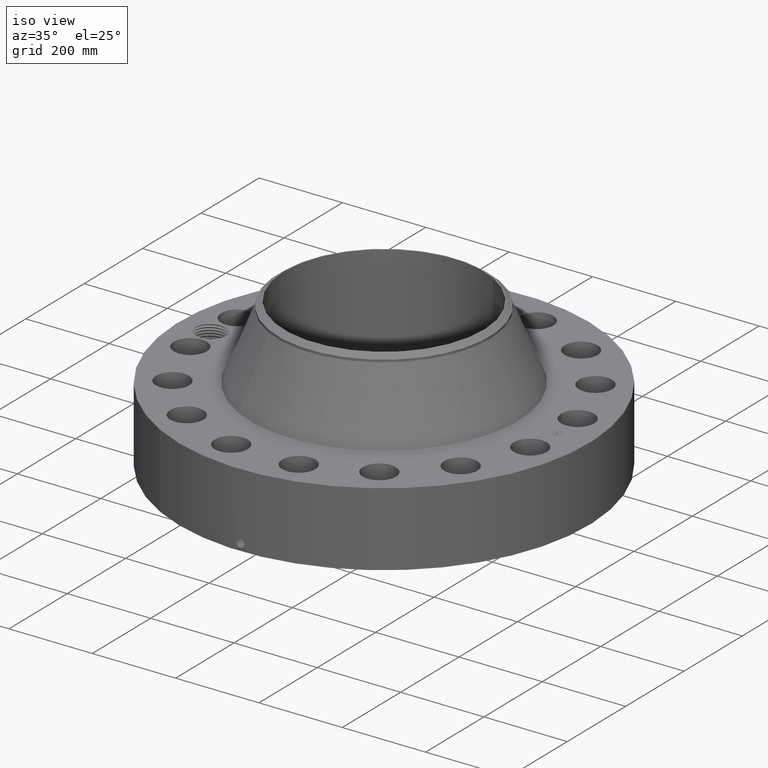
[diagram: clean part render]
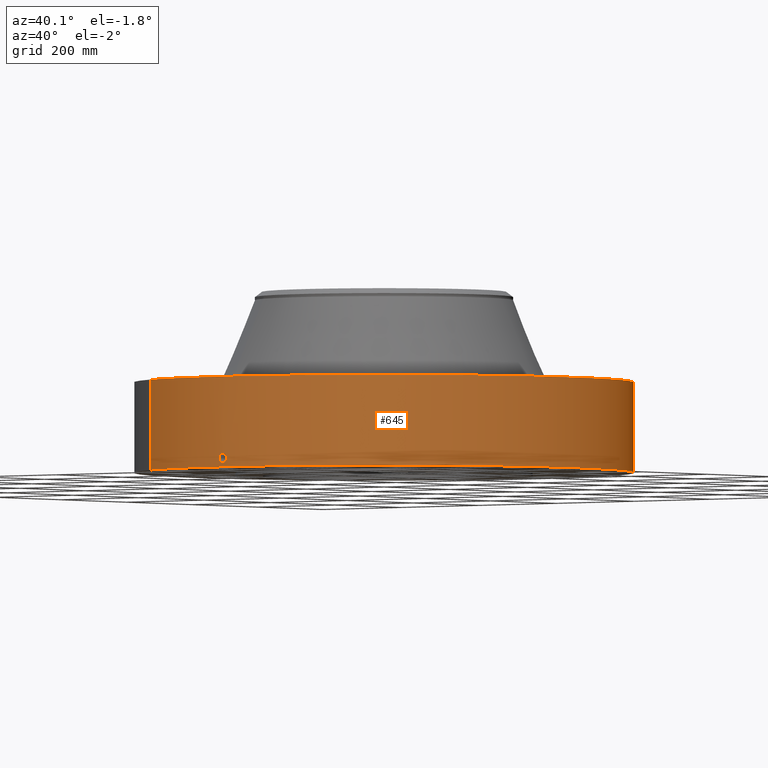
[diagram: tour spotlight — one face highlighted and labeled with its STEP entity id]
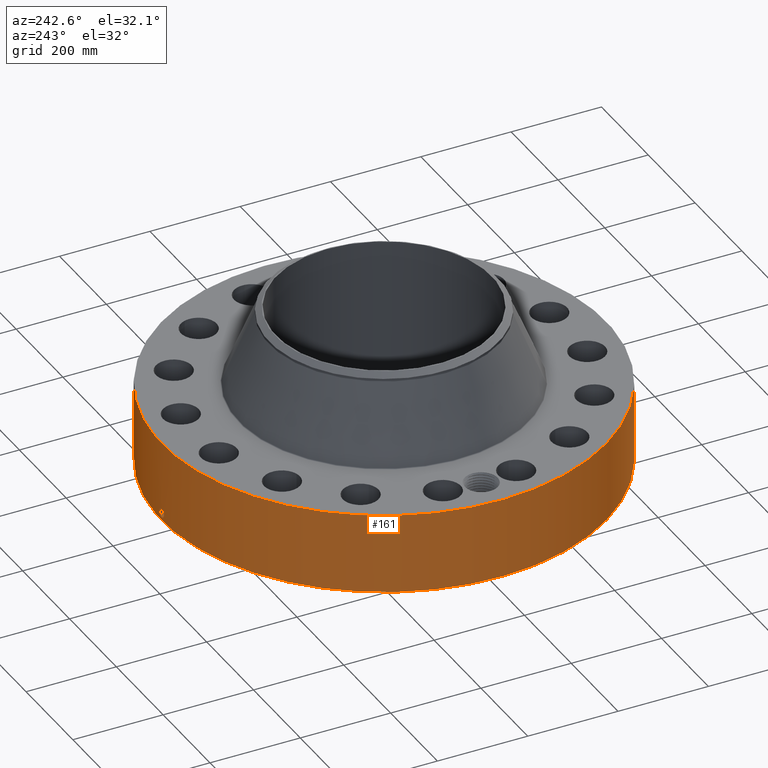
[diagram: tour spotlight — one face highlighted and labeled with its STEP entity id]
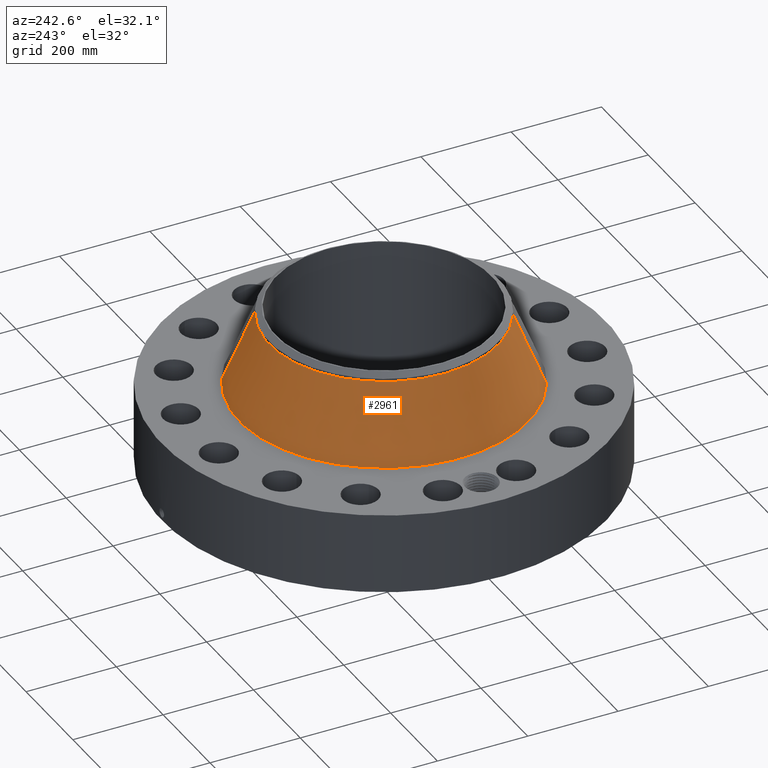
[diagram: tour spotlight — one face highlighted and labeled with its STEP entity id]
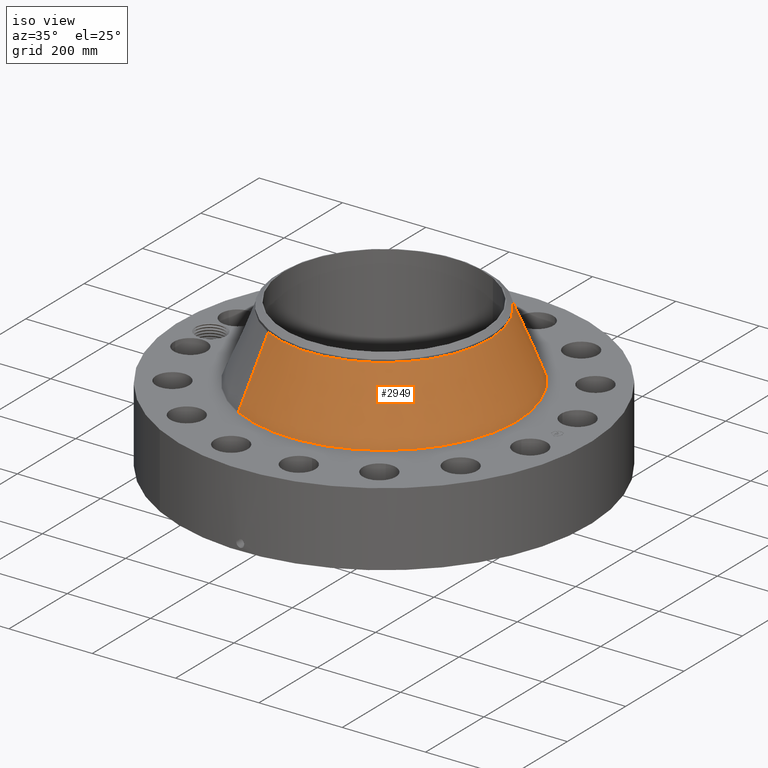
[diagram: tour spotlight — one face highlighted and labeled with its STEP entity id]
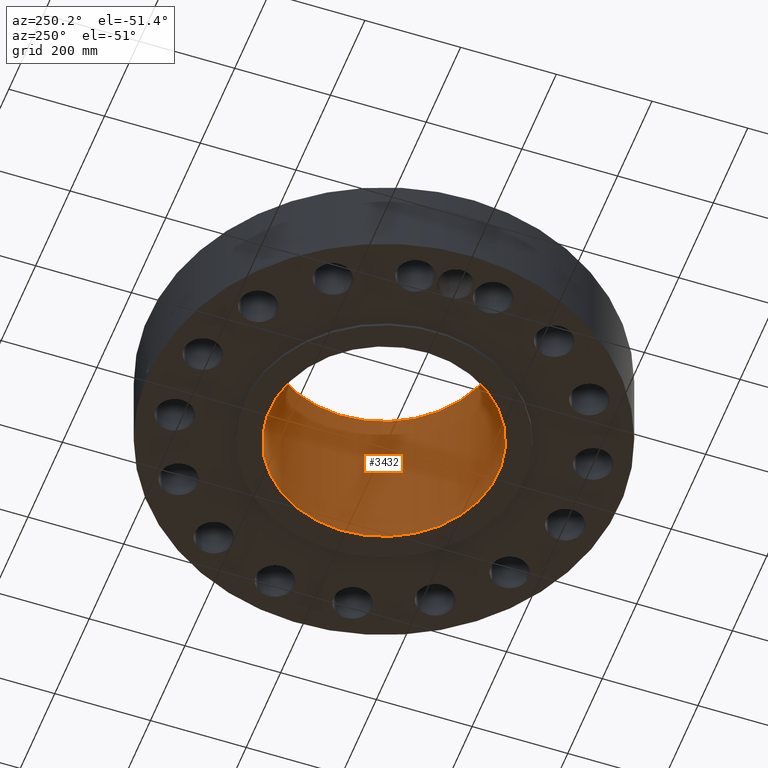
[diagram: tour spotlight — one face highlighted and labeled with its STEP entity id]
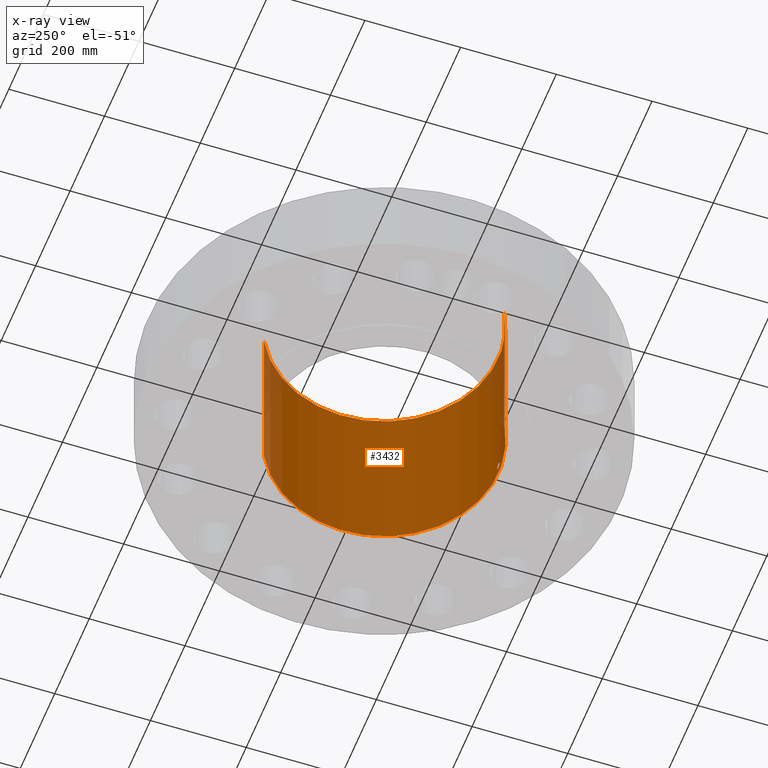
[diagram: x-ray of the same camera — body ghosted, this tour face saturated]
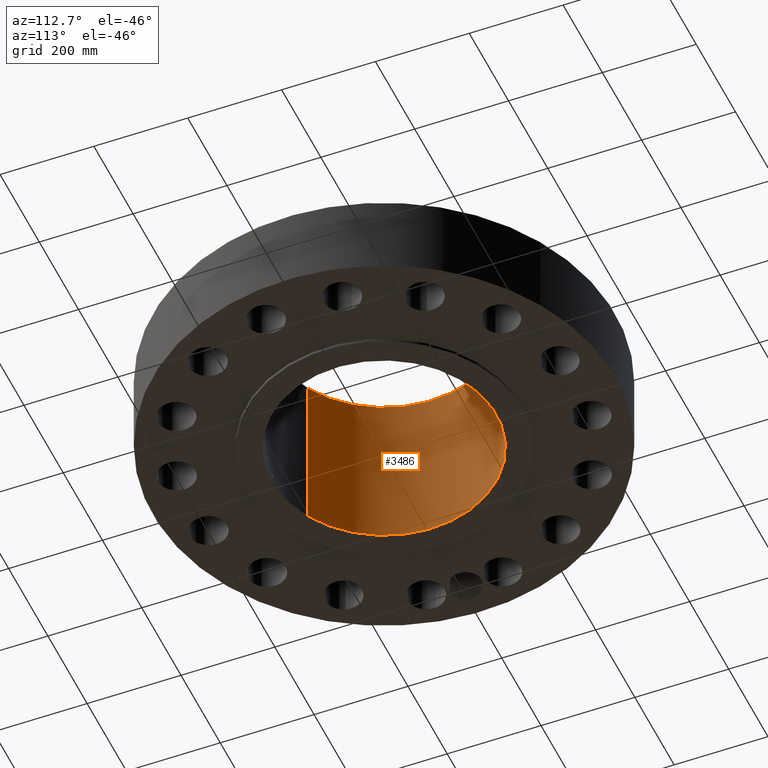
[diagram: tour spotlight — one face highlighted and labeled with its STEP entity id]
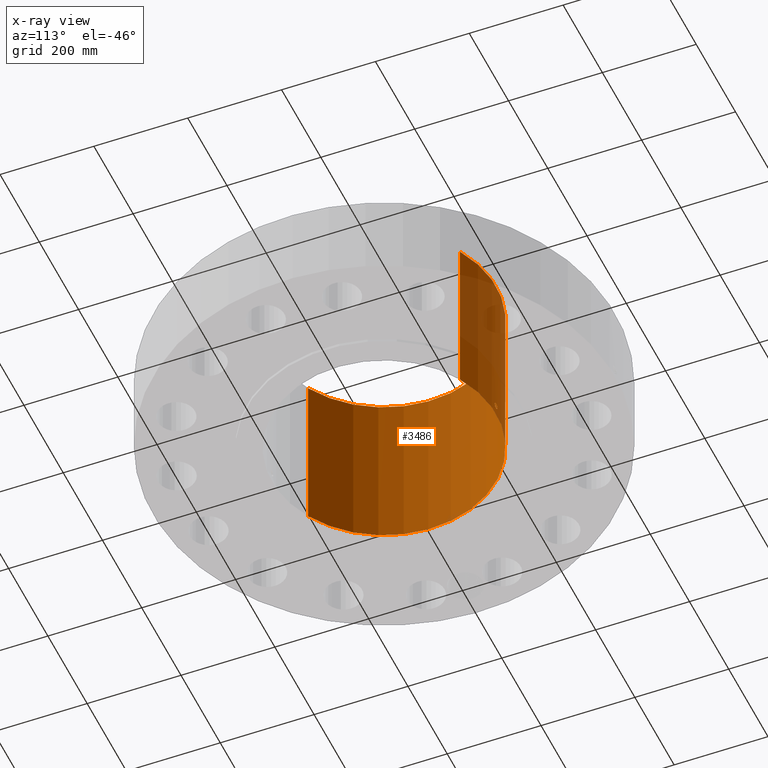
[diagram: x-ray of the same camera — body ghosted, this tour face saturated]
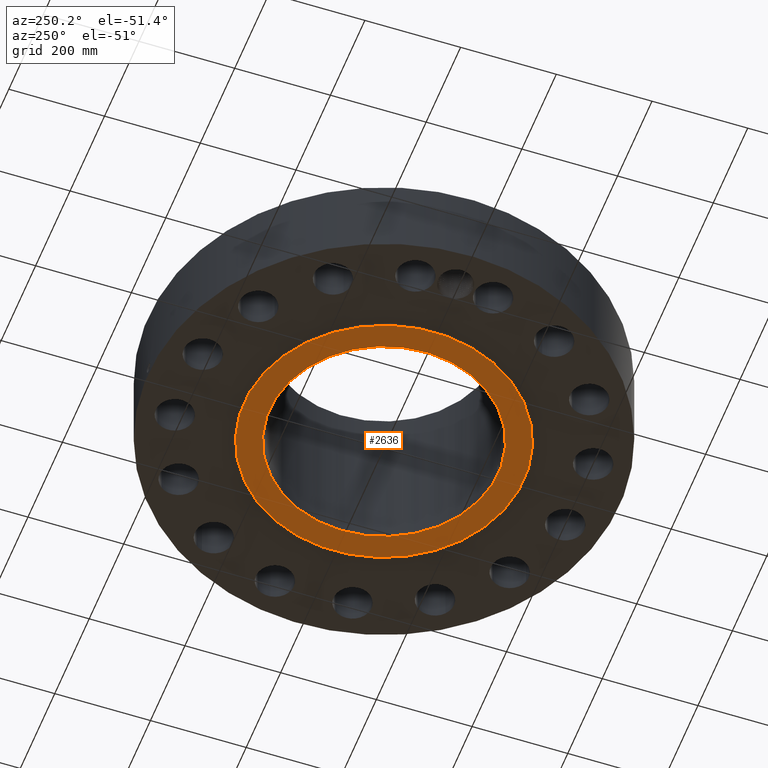
[diagram: tour spotlight — one face highlighted and labeled with its STEP entity id]
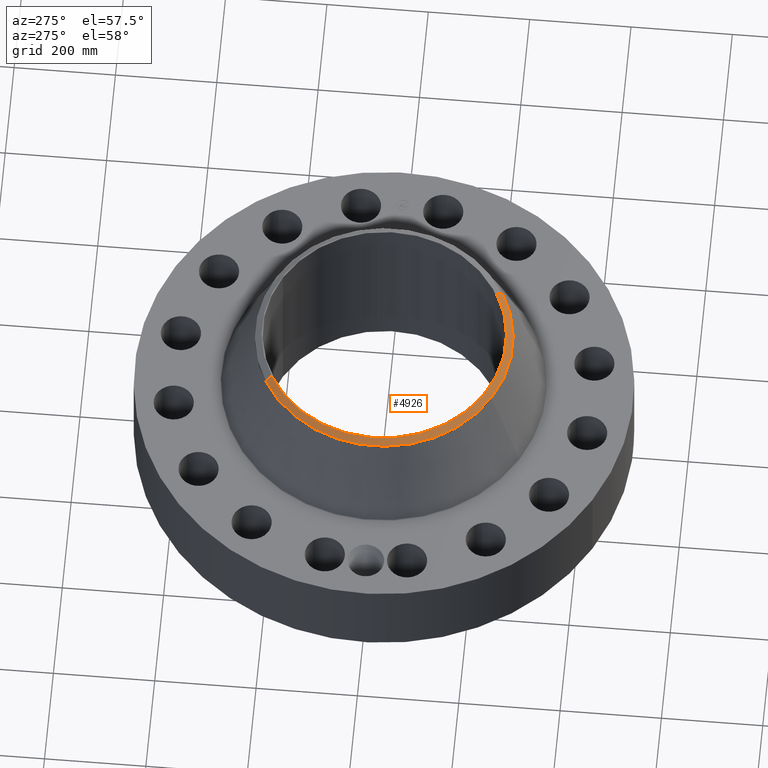
[diagram: tour spotlight — one face highlighted and labeled with its STEP entity id]
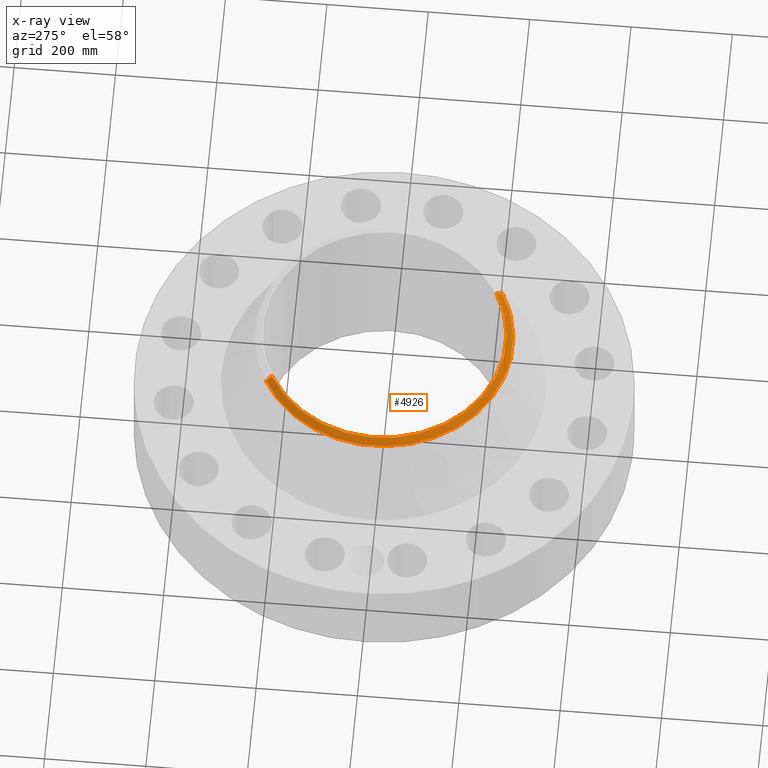
[diagram: x-ray of the same camera — body ghosted, this tour face saturated]
A machine part: a face-by-face anatomy tour. The part has 863 B-rep faces; the first image is the clean iso view, then the 8 largest visible faces are spotlighted one at a time (largest first), each with its STEP entity span.

Face 1 — auxiliary view, entity #645. In plain terms, the highlighted cylindrical surface (partial cylindrical patch) has radius 492.125 mm, axis along (0, 0, -1).
Definition (entity closure, byte-faithful):
#38=AXIS2_PLACEMENT_3D('Cylinder Axis2P3D',#35,#36,#37) ;
#169=AXIS2_PLACEMENT_3D('Circle Axis2P3D',#167,#168,$) ;
#549=AXIS2_PLACEMENT_3D('Circle Axis2P3D',#547,#548,$) ;
#35=CARTESIAN_POINT('Axis2P3D Location',(0.,0.,7.12500000003)) ;
#44=CARTESIAN_POINT('Vertex',(-9.28886981049,-17.0031621367,0.250000000001)) ;
#46=CARTESIAN_POINT('Vertex',(9.28886981049,17.0031621367,0.250000000001)) ;
#49=CARTESIAN_POINT('Line Origine',(-9.28886981049,-17.0031621367,3.75000000002)) ;
#53=CARTESIAN_POINT('Vertex',(-9.28886981049,-17.0031621367,7.25000000003)) ;
#60=CARTESIAN_POINT('Vertex',(9.28886981049,17.0031621367,7.25000000003)) ;
#63=CARTESIAN_POINT('Line Origine',(9.28886981049,17.0031621367,3.75000000002)) ;
#167=CARTESIAN_POINT('Axis2P3D Location',(0.,0.,0.250000000001)) ;
#547=CARTESIAN_POINT('Axis2P3D Location',(0.,0.,7.25000000003)) ;
#559=CARTESIAN_POINT('Control Point',(0.000715863900645,-19.3749999869,1.29411846178)) ;
#560=CARTESIAN_POINT('Control Point',(0.0187274883206,-19.3749993214,1.29408209957)) ;
#561=CARTESIAN_POINT('Control Point',(0.0367360096922,-19.3749733466,1.29266801176)) ;
#562=CARTESIAN_POINT('Control Point',(0.0545323828082,-19.3749232572,1.28989276382)) ;
#563=CARTESIAN_POINT('Vertex',(0.00071558600633,-19.3749999869,1.29411851089)) ;
#565=CARTESIAN_POINT('Vertex',(0.0545238961166,-19.3749235316,1.28989410461)) ;
#569=CARTESIAN_POINT('Control Point',(0.054523803306,-19.3749232813,1.28989356526)) ;
#570=CARTESIAN_POINT('Control Point',(0.0952495089852,-19.3748086734,1.28558793415)) ;
#571=CARTESIAN_POINT('Control Point',(0.135369475654,-19.3745624178,1.27388902874)) ;
#572=CARTESIAN_POINT('Control Point',(0.172364944289,-19.3742332836,1.25554232244)) ;
#573=CARTESIAN_POINT('Vertex',(0.172364944289,-19.3742332836,1.25554232244)) ;
#577=CARTESIAN_POINT('Control Point',(0.0312436872625,-19.3749748086,0.531206483314)) ;
#578=CARTESIAN_POINT('Control Point',(0.0678023318377,-19.3749158549,0.535827410898)) ;
#579=CARTESIAN_POINT('Control Point',(0.103721707574,-19.3747717037,0.544692424997)) ;
#580=CARTESIAN_POINT('Control Point',(0.138326707916,-19.3745493389,0.557689848474)) ;
#581=CARTESIAN_POINT('Control Point',(0.226423499763,-19.373793319,0.603083765607)) ;
#582=CARTESIAN_POINT('Control Point',(0.29672046936,-19.3727935842,0.673349716684)) ;
#583=CARTESIAN_POINT('Control Point',(0.331423572785,-19.3721888927,0.72537651393)) ;
#584=CARTESIAN_POINT('Control Point',(0.371132085779,-19.3714520452,0.820793001463)) ;
#585=CARTESIAN_POINT('Control Point',(0.378801310697,-19.3712955761,0.921903188618)) ;
#586=CARTESIAN_POINT('Control Point',(0.376557324656,-19.3713406701,0.962651832279)) ;
#587=CARTESIAN_POINT('Control Point',(0.358089730346,-19.3717053706,1.06075021906)) ;
#588=CARTESIAN_POINT('Control Point',(0.309416329553,-19.372565076,1.14816236131)) ;
#589=CARTESIAN_POINT('Control Point',(0.27070900683,-19.3731860125,1.19359996416)) ;
#590=CARTESIAN_POINT('Control Point',(0.22404660176,-19.3737734922,1.22991247238)) ;
#591=CARTESIAN_POINT('Control Point',(0.172364944289,-19.3742332836,1.25554232244)) ;
#592=CARTESIAN_POINT('Vertex',(0.0312436872625,-19.3749748086,0.531206483314)) ;
#596=CARTESIAN_POINT('Control Point',(0.0312436872625,-19.3749748086,0.531206483314)) ;
#597=CARTESIAN_POINT('Control Point',(0.0208245853632,-19.3749916103,0.530877072219)) ;
#598=CARTESIAN_POINT('Control Point',(0.010397084356,-19.3750000015,0.530933315092)) ;
#599=CARTESIAN_POINT('Control Point',(-2.72878354875E-006,-19.3750000001,0.531374667806)) ;
#600=CARTESIAN_POINT('Vertex',(-2.72878354541E-006,-19.3750000001,0.531374667806)) ;
#604=CARTESIAN_POINT('Control Point',(-0.192438333938,-19.3740442988,0.587755384677)) ;
#605=CARTESIAN_POINT('Control Point',(-0.148933431991,-19.3744764239,0.562242000775)) ;
#606=CARTESIAN_POINT('Control Point',(-0.101103937362,-19.3748218689,0.543850312285)) ;
#607=CARTESIAN_POINT('Control Point',(-0.0508013594514,-19.3749999929,0.533530485511)) ;
#608=CARTESIAN_POINT('Control Point',(-2.72878354875E-006,-19.3750000001,0.531374667806)) ;
#609=CARTESIAN_POINT('Vertex',(-0.192438333938,-19.3740442988,0.587755384677)) ;
#613=CARTESIAN_POINT('Control Point',(-0.192438333938,-19.3740442988,0.587755384677)) ;
#614=CARTESIAN_POINT('Control Point',(-0.249135601968,-19.3734811367,0.62100541426)) ;
#615=CARTESIAN_POINT('Control Point',(-0.298965771445,-19.372778761,0.665594552224)) ;
#616=CARTESIAN_POINT('Control Point',(-0.338770752814,-19.3720688151,0.719874275903)) ;
#617=CARTESIAN_POINT('Control Point',(-0.382536382779,-19.3712307611,0.818236552551)) ;
#618=CARTESIAN_POINT('Control Point',(-0.39076558001,-19.3710579406,0.923505600374)) ;
#619=CARTESIAN_POINT('Control Point',(-0.388528855003,-19.3711042966,0.963744549784)) ;
#620=CARTESIAN_POINT('Control Point',(-0.373405470587,-19.371412167,1.04267052841)) ;
#621=CARTESIAN_POINT('Control Point',(-0.338386080275,-19.3720580517,1.11439323099)) ;
#622=CARTESIAN_POINT('Control Point',(-0.316177990954,-19.3724439891,1.14765006703)) ;
#623=CARTESIAN_POINT('Control Point',(-0.251663804067,-19.3734494968,1.22092676044)) ;
#624=CARTESIAN_POINT('Control Point',(-0.16730606587,-19.3743818271,1.26997762707)) ;
#625=CARTESIAN_POINT('Control Point',(-0.112550833977,-19.3747986662,1.28889783269)) ;
#626=CARTESIAN_POINT('Control Point',(-0.055857980625,-19.3750000746,1.29689292322)) ;
#627=CARTESIAN_POINT('Control Point',(2.58579355338E-005,-19.3750000001,1.29415298429)) ;
#628=CARTESIAN_POINT('Vertex',(2.58579355483E-005,-19.3750000001,1.29415298429)) ;
#632=CARTESIAN_POINT('Control Point',(0.000715585996895,-19.3749999869,1.29411851087)) ;
#633=CARTESIAN_POINT('Control Point',(0.000370746639551,-19.3749999996,1.2941360747)) ;
#634=CARTESIAN_POINT('Control Point',(2.58579403441E-005,-19.3750000001,1.29415298429)) ;
#36=DIRECTION('Axis2P3D Direction',(0.,0.,-0.0393700787402)) ;
#37=DIRECTION('Axis2P3D XDirection',(0.0188750212049,0.0345504945626,0.)) ;
#50=DIRECTION('Vector Direction',(0.,0.,-0.0393700787402)) ;
#64=DIRECTION('Vector Direction',(0.,0.,-0.0393700787402)) ;
#168=DIRECTION('Axis2P3D Direction',(0.,0.,-0.0393700787402)) ;
#548=DIRECTION('Axis2P3D Direction',(0.,0.,-0.0393700787402)) ;
#51=VECTOR('Line Direction',#50,0.0393700787402) ;
#65=VECTOR('Line Direction',#64,0.0393700787402) ;
#553=ORIENTED_EDGE('',*,*,#171,.F.) ;
#554=ORIENTED_EDGE('',*,*,#67,.T.) ;
#555=ORIENTED_EDGE('',*,*,#551,.T.) ;
#556=ORIENTED_EDGE('',*,*,#55,.F.) ;
#637=ORIENTED_EDGE('',*,*,#567,.T.) ;
#638=ORIENTED_EDGE('',*,*,#575,.T.) ;
#639=ORIENTED_EDGE('',*,*,#594,.F.) ;
#640=ORIENTED_EDGE('',*,*,#602,.T.) ;
#641=ORIENTED_EDGE('',*,*,#611,.F.) ;
#642=ORIENTED_EDGE('',*,*,#630,.T.) ;
#643=ORIENTED_EDGE('',*,*,#635,.F.) ;
#644=FACE_BOUND('',#636,.T.) ;
#645=ADVANCED_FACE('PartBody',(#557,#644),#39,.T.) ;
#558=B_SPLINE_CURVE_WITH_KNOTS('',3,(#559,#560,#561,#562),.UNSPECIFIED.,.F.,.U.,(4,4),(34.6168722843,36.6150904624),.UNSPECIFIED.) ;
#568=B_SPLINE_CURVE_WITH_KNOTS('',3,(#569,#570,#571,#572),.UNSPECIFIED.,.F.,.U.,(4,4),(0.,4.60162958379),.UNSPECIFIED.) ;
#576=B_SPLINE_CURVE_WITH_KNOTS('',5,(#577,#578,#579,#580,#581,#582,#583,#584,#585,#586,#587,#588,#589,#590,#591),.UNSPECIFIED.,.F.,.U.,(6,3,3,3,6),(0.,6.4039659692,17.2723773345,24.601662318,35.3155803032),.UNSPECIFIED.) ;
#595=B_SPLINE_CURVE_WITH_KNOTS('',3,(#596,#597,#598,#599),.UNSPECIFIED.,.F.,.U.,(4,4),(0.,1.0869021121),.UNSPECIFIED.) ;
#603=B_SPLINE_CURVE_WITH_KNOTS('',4,(#604,#605,#606,#607,#608),.UNSPECIFIED.,.F.,.U.,(5,5),(0.,7.07873473471),.UNSPECIFIED.) ;
#612=B_SPLINE_CURVE_WITH_KNOTS('',5,(#613,#614,#615,#616,#617,#618,#619,#620,#621,#622,#623,#624,#625,#626,#627),.UNSPECIFIED.,.F.,.U.,(6,3,3,3,6),(0.,11.5316007711,18.6403647704,25.7940112302,36.2398608725),.UNSPECIFIED.) ;
#631=B_SPLINE_CURVE_WITH_KNOTS('',2,(#632,#633,#634),.UNSPECIFIED.,.F.,.U.,(3,3),(1.0151980904,1.04098483471),.UNSPECIFIED.) ;
#170=CIRCLE('generated circle',#169,19.3750000001) ;
#550=CIRCLE('generated circle',#549,19.3750000001) ;
#39=CYLINDRICAL_SURFACE('generated cylinder',#38,19.3750000001) ;
#55=EDGE_CURVE('',#45,#54,#52,.F.) ;
#67=EDGE_CURVE('',#47,#61,#66,.F.) ;
#171=EDGE_CURVE('',#47,#45,#170,.T.) ;
#551=EDGE_CURVE('',#61,#54,#550,.T.) ;
#567=EDGE_CURVE('',#564,#566,#558,.T.) ;
#575=EDGE_CURVE('',#566,#574,#568,.T.) ;
#594=EDGE_CURVE('',#593,#574,#576,.T.) ;
#602=EDGE_CURVE('',#593,#601,#595,.T.) ;
#611=EDGE_CURVE('',#610,#601,#603,.T.) ;
#630=EDGE_CURVE('',#610,#629,#612,.T.) ;
#635=EDGE_CURVE('',#564,#629,#631,.T.) ;
#552=EDGE_LOOP('',(#553,#554,#555,#556)) ;
#636=EDGE_LOOP('',(#637,#638,#639,#640,#641,#642,#643)) ;
#557=FACE_OUTER_BOUND('',#552,.T.) ;
#52=LINE('Line',#49,#51) ;
#66=LINE('Line',#63,#65) ;
#45=VERTEX_POINT('',#44) ;
#47=VERTEX_POINT('',#46) ;
#54=VERTEX_POINT('',#53) ;
#61=VERTEX_POINT('',#60) ;
#564=VERTEX_POINT('',#563) ;
#566=VERTEX_POINT('',#565) ;
#574=VERTEX_POINT('',#573) ;
#593=VERTEX_POINT('',#592) ;
#601=VERTEX_POINT('',#600) ;
#610=VERTEX_POINT('',#609) ;
#629=VERTEX_POINT('',#628) ;

Face 2 — auxiliary view, entity #161. In plain terms, the highlighted cylindrical surface (partial cylindrical patch) has radius 492.125 mm, axis along (0, 0, -1).
Definition (entity closure, byte-faithful):
#38=AXIS2_PLACEMENT_3D('Cylinder Axis2P3D',#35,#36,#37) ;
#42=AXIS2_PLACEMENT_3D('Circle Axis2P3D',#40,#41,$) ;
#58=AXIS2_PLACEMENT_3D('Circle Axis2P3D',#56,#57,$) ;
#35=CARTESIAN_POINT('Axis2P3D Location',(0.,0.,7.12500000003)) ;
#40=CARTESIAN_POINT('Axis2P3D Location',(0.,0.,0.250000000001)) ;
#44=CARTESIAN_POINT('Vertex',(-9.28886981049,-17.0031621367,0.250000000001)) ;
#46=CARTESIAN_POINT('Vertex',(9.28886981049,17.0031621367,0.250000000001)) ;
#49=CARTESIAN_POINT('Line Origine',(-9.28886981049,-17.0031621367,3.75000000002)) ;
#53=CARTESIAN_POINT('Vertex',(-9.28886981049,-17.0031621367,7.25000000003)) ;
#56=CARTESIAN_POINT('Axis2P3D Location',(0.,0.,7.25000000003)) ;
#60=CARTESIAN_POINT('Vertex',(9.28886981049,17.0031621367,7.25000000003)) ;
#63=CARTESIAN_POINT('Line Origine',(9.28886981049,17.0031621367,3.75000000002)) ;
#75=CARTESIAN_POINT('Control Point',(-0.000715863900562,19.3749999869,1.29411846178)) ;
#76=CARTESIAN_POINT('Control Point',(-0.0187274883271,19.3749993214,1.29408209957)) ;
#77=CARTESIAN_POINT('Control Point',(-0.0367360096926,19.3749733466,1.29266801176)) ;
#78=CARTESIAN_POINT('Control Point',(-0.0545323828083,19.3749232572,1.28989276382)) ;
#79=CARTESIAN_POINT('Vertex',(-0.000715586006328,19.3749999869,1.29411851089)) ;
#81=CARTESIAN_POINT('Vertex',(-0.0545238961166,19.3749235316,1.28989410461)) ;
#85=CARTESIAN_POINT('Control Point',(-0.0545238033061,19.3749232813,1.28989356526)) ;
#86=CARTESIAN_POINT('Control Point',(-0.0952495089726,19.3748086734,1.28558793415)) ;
#87=CARTESIAN_POINT('Control Point',(-0.135369475666,19.3745624178,1.27388902874)) ;
#88=CARTESIAN_POINT('Control Point',(-0.172364944289,19.3742332836,1.25554232244)) ;
#89=CARTESIAN_POINT('Vertex',(-0.172364944289,19.3742332836,1.25554232244)) ;
#93=CARTESIAN_POINT('Control Point',(-0.0312436872625,19.3749748086,0.531206483314)) ;
#94=CARTESIAN_POINT('Control Point',(-0.067802331919,19.3749158549,0.535827410908)) ;
#95=CARTESIAN_POINT('Control Point',(-0.103721707734,19.3747717037,0.544692425035)) ;
#96=CARTESIAN_POINT('Control Point',(-0.13832670777,19.3745493389,0.557689848398)) ;
#97=CARTESIAN_POINT('Control Point',(-0.226423499768,19.373793319,0.603083765582)) ;
#98=CARTESIAN_POINT('Control Point',(-0.296720469461,19.3727935842,0.673349716784)) ;
#99=CARTESIAN_POINT('Control Point',(-0.331423572731,19.3721888927,0.7253765138)) ;
#100=CARTESIAN_POINT('Control Point',(-0.371132085775,19.3714520452,0.820793001395)) ;
#101=CARTESIAN_POINT('Control Point',(-0.378801310697,19.3712955761,0.921903188622)) ;
#102=CARTESIAN_POINT('Control Point',(-0.376557324657,19.3713406701,0.962651832274)) ;
#103=CARTESIAN_POINT('Control Point',(-0.358089730346,19.3717053706,1.06075021906)) ;
#104=CARTESIAN_POINT('Control Point',(-0.309416329545,19.372565076,1.14816236132)) ;
#105=CARTESIAN_POINT('Control Point',(-0.270709006845,19.3731860125,1.19359996415)) ;
#106=CARTESIAN_POINT('Control Point',(-0.224046601768,19.3737734922,1.22991247238)) ;
#107=CARTESIAN_POINT('Control Point',(-0.172364944289,19.3742332836,1.25554232244)) ;
#108=CARTESIAN_POINT('Vertex',(-0.0312436872625,19.3749748086,0.531206483314)) ;
#112=CARTESIAN_POINT('Control Point',(-0.0312436872625,19.3749748086,0.531206483314)) ;
#113=CARTESIAN_POINT('Control Point',(-0.0208245853632,19.3749916103,0.530877072219)) ;
#114=CARTESIAN_POINT('Control Point',(-0.010397084356,19.3750000015,0.530933315092)) ;
#115=CARTESIAN_POINT('Control Point',(2.72878354638E-006,19.3750000001,0.531374667806)) ;
#116=CARTESIAN_POINT('Vertex',(2.7287835431E-006,19.3750000001,0.531374667806)) ;
#120=CARTESIAN_POINT('Control Point',(0.192438333938,19.3740442988,0.587755384677)) ;
#121=CARTESIAN_POINT('Control Point',(0.148933432012,19.3744764239,0.562242000787)) ;
#122=CARTESIAN_POINT('Control Point',(0.101103937336,19.3748218689,0.54385031228)) ;
#123=CARTESIAN_POINT('Control Point',(0.0508013594274,19.3749999929,0.533530485509)) ;
#124=CARTESIAN_POINT('Control Point',(2.72878358078E-006,19.3750000001,0.531374667806)) ;
#125=CARTESIAN_POINT('Vertex',(0.192438333938,19.3740442988,0.587755384677)) ;
#129=CARTESIAN_POINT('Control Point',(0.192438333938,19.3740442988,0.587755384677)) ;
#130=CARTESIAN_POINT('Control Point',(0.249135601927,19.3734811367,0.621005414236)) ;
#131=CARTESIAN_POINT('Control Point',(0.298965771373,19.372778761,0.665594552159)) ;
#132=CARTESIAN_POINT('Control Point',(0.338770752545,19.3720688151,0.719874275487)) ;
#133=CARTESIAN_POINT('Control Point',(0.382536382604,19.3712307611,0.818236551986)) ;
#134=CARTESIAN_POINT('Control Point',(0.390765580003,19.3710579406,0.923505599703)) ;
#135=CARTESIAN_POINT('Control Point',(0.388528855047,19.3711042966,0.963744549304)) ;
#136=CARTESIAN_POINT('Control Point',(0.373405470749,19.371412167,1.0426705279)) ;
#137=CARTESIAN_POINT('Control Point',(0.338386080563,19.3720580517,1.1143932305)) ;
#138=CARTESIAN_POINT('Control Point',(0.3161779913,19.3724439891,1.14765006657)) ;
#139=CARTESIAN_POINT('Control Point',(0.251663804444,19.3734494968,1.22092676017)) ;
#140=CARTESIAN_POINT('Control Point',(0.167306066191,19.3743818271,1.26997762696)) ;
#141=CARTESIAN_POINT('Control Point',(0.112550834205,19.3747986662,1.28889783266)) ;
#142=CARTESIAN_POINT('Control Point',(0.0558579807378,19.3750000746,1.29689292322)) ;
#143=CARTESIAN_POINT('Control Point',(-2.58579355534E-005,19.3750000001,1.29415298429)) ;
#144=CARTESIAN_POINT('Vertex',(-2.58579355508E-005,19.3750000001,1.29415298429)) ;
#148=CARTESIAN_POINT('Control Point',(-0.000715585996851,19.3749999869,1.29411851087)) ;
#149=CARTESIAN_POINT('Control Point',(-0.000370746639545,19.3749999996,1.2941360747)) ;
#150=CARTESIAN_POINT('Control Point',(-2.58579403755E-005,19.3750000001,1.29415298429)) ;
#36=DIRECTION('Axis2P3D Direction',(0.,0.,-0.0393700787402)) ;
#37=DIRECTION('Axis2P3D XDirection',(0.0188750212049,0.0345504945626,0.)) ;
#41=DIRECTION('Axis2P3D Direction',(0.,0.,-0.0393700787402)) ;
#50=DIRECTION('Vector Direction',(0.,0.,-0.0393700787402)) ;
#57=DIRECTION('Axis2P3D Direction',(0.,0.,-0.0393700787402)) ;
#64=DIRECTION('Vector Direction',(0.,0.,-0.0393700787402)) ;
#51=VECTOR('Line Direction',#50,0.0393700787402) ;
#65=VECTOR('Line Direction',#64,0.0393700787402) ;
#69=ORIENTED_EDGE('',*,*,#48,.F.) ;
#70=ORIENTED_EDGE('',*,*,#55,.T.) ;
#71=ORIENTED_EDGE('',*,*,#62,.T.) ;
#72=ORIENTED_EDGE('',*,*,#67,.F.) ;
#153=ORIENTED_EDGE('',*,*,#83,.T.) ;
#154=ORIENTED_EDGE('',*,*,#91,.T.) ;
#155=ORIENTED_EDGE('',*,*,#110,.F.) ;
#156=ORIENTED_EDGE('',*,*,#118,.T.) ;
#157=ORIENTED_EDGE('',*,*,#127,.F.) ;
#158=ORIENTED_EDGE('',*,*,#146,.T.) ;
#159=ORIENTED_EDGE('',*,*,#151,.F.) ;
#160=FACE_BOUND('',#152,.T.) ;
#161=ADVANCED_FACE('PartBody',(#73,#160),#39,.T.) ;
#74=B_SPLINE_CURVE_WITH_KNOTS('',3,(#75,#76,#77,#78),.UNSPECIFIED.,.F.,.U.,(4,4),(34.6168723131,36.615090491),.UNSPECIFIED.) ;
#84=B_SPLINE_CURVE_WITH_KNOTS('',3,(#85,#86,#87,#88),.UNSPECIFIED.,.F.,.U.,(4,4),(0.,4.60162958236),.UNSPECIFIED.) ;
#92=B_SPLINE_CURVE_WITH_KNOTS('',5,(#93,#94,#95,#96,#97,#98,#99,#100,#101,#102,#103,#104,#105,#106,#107),.UNSPECIFIED.,.F.,.U.,(6,3,3,3,6),(0.,6.40396598342,17.2723773611,24.601662345,35.3155803317),.UNSPECIFIED.) ;
#111=B_SPLINE_CURVE_WITH_KNOTS('',3,(#112,#113,#114,#115),.UNSPECIFIED.,.F.,.U.,(4,4),(0.,1.0869021121),.UNSPECIFIED.) ;
#119=B_SPLINE_CURVE_WITH_KNOTS('',4,(#120,#121,#122,#123,#124),.UNSPECIFIED.,.F.,.U.,(5,5),(0.,7.07873473136),.UNSPECIFIED.) ;
#128=B_SPLINE_CURVE_WITH_KNOTS('',5,(#129,#130,#131,#132,#133,#134,#135,#136,#137,#138,#139,#140,#141,#142,#143),.UNSPECIFIED.,.F.,.U.,(6,3,3,3,6),(0.,11.5316007627,18.6403647537,25.7940112139,36.2398608773),.UNSPECIFIED.) ;
#147=B_SPLINE_CURVE_WITH_KNOTS('',2,(#148,#149,#150),.UNSPECIFIED.,.F.,.U.,(3,3),(1.0151980904,1.04098483471),.UNSPECIFIED.) ;
#43=CIRCLE('generated circle',#42,19.3750000001) ;
#59=CIRCLE('generated circle',#58,19.3750000001) ;
#39=CYLINDRICAL_SURFACE('generated cylinder',#38,19.3750000001) ;
#48=EDGE_CURVE('',#45,#47,#43,.T.) ;
#55=EDGE_CURVE('',#45,#54,#52,.F.) ;
#62=EDGE_CURVE('',#54,#61,#59,.T.) ;
#67=EDGE_CURVE('',#47,#61,#66,.F.) ;
#83=EDGE_CURVE('',#80,#82,#74,.T.) ;
#91=EDGE_CURVE('',#82,#90,#84,.T.) ;
#110=EDGE_CURVE('',#109,#90,#92,.T.) ;
#118=EDGE_CURVE('',#109,#117,#111,.T.) ;
#127=EDGE_CURVE('',#126,#117,#119,.T.) ;
#146=EDGE_CURVE('',#126,#145,#128,.T.) ;
#151=EDGE_CURVE('',#80,#145,#147,.T.) ;
#68=EDGE_LOOP('',(#69,#70,#71,#72)) ;
#152=EDGE_LOOP('',(#153,#154,#155,#156,#157,#158,#159)) ;
#73=FACE_OUTER_BOUND('',#68,.T.) ;
#52=LINE('Line',#49,#51) ;
#66=LINE('Line',#63,#65) ;
#45=VERTEX_POINT('',#44) ;
#47=VERTEX_POINT('',#46) ;
#54=VERTEX_POINT('',#53) ;
#61=VERTEX_POINT('',#60) ;
#80=VERTEX_POINT('',#79) ;
#82=VERTEX_POINT('',#81) ;
#90=VERTEX_POINT('',#89) ;
#109=VERTEX_POINT('',#108) ;
#117=VERTEX_POINT('',#116) ;
#126=VERTEX_POINT('',#125) ;
#145=VERTEX_POINT('',#144) ;

Face 3 — auxiliary view, entity #2961. In plain terms, the highlighted conical surface has half-angle 22.401 deg.
Definition (entity closure, byte-faithful):
#2283=AXIS2_PLACEMENT_3D('Circle Axis2P3D',#2281,#2282,$) ;
#2922=AXIS2_PLACEMENT_3D('Cone Axis2P3D',#2919,#2920,#2921) ;
#2952=AXIS2_PLACEMENT_3D('Circle Axis2P3D',#2950,#2951,$) ;
#2259=CARTESIAN_POINT('Vertex',(6.03807064819,11.0526141843,7.32426958691)) ;
#2266=CARTESIAN_POINT('Vertex',(-6.03807064819,-11.0526141843,7.32426958691)) ;
#2281=CARTESIAN_POINT('Axis2P3D Location',(0.,0.,7.32426958691)) ;
#2919=CARTESIAN_POINT('Axis2P3D Location',(0.,0.,13.6184067446)) ;
#2924=CARTESIAN_POINT('Line Origine',(5.41616301712,9.91421990164,10.4713381658)) ;
#2928=CARTESIAN_POINT('Vertex',(4.79425538606,8.77582561894,13.6184067446)) ;
#2935=CARTESIAN_POINT('Vertex',(-4.79425538606,-8.77582561894,13.6184067446)) ;
#2938=CARTESIAN_POINT('Line Origine',(-5.41616301712,-9.91421990164,10.4713381658)) ;
#2950=CARTESIAN_POINT('Axis2P3D Location',(0.,0.,13.6184067446)) ;
#2282=DIRECTION('Axis2P3D Direction',(0.,0.,-0.0393700787402)) ;
#2920=DIRECTION('Axis2P3D Direction',(0.,0.,-0.0393700787402)) ;
#2921=DIRECTION('Axis2P3D XDirection',(-0.0188750212049,-0.0345504945626,0.)) ;
#2925=DIRECTION('Vector Direction',(0.00719302097712,0.0131667365806,-0.0363991840162)) ;
#2939=DIRECTION('Vector Direction',(-0.00719302097712,-0.0131667365806,-0.0363991840162)) ;
#2951=DIRECTION('Axis2P3D Direction',(0.,0.,-0.0393700787402)) ;
#2926=VECTOR('Line Direction',#2925,0.0393700787402) ;
#2940=VECTOR('Line Direction',#2939,0.0393700787402) ;
#2956=ORIENTED_EDGE('',*,*,#2285,.F.) ;
#2957=ORIENTED_EDGE('',*,*,#2942,.T.) ;
#2958=ORIENTED_EDGE('',*,*,#2954,.T.) ;
#2959=ORIENTED_EDGE('',*,*,#2930,.F.) ;
#2961=ADVANCED_FACE('PartBody',(#2960),#2923,.T.) ;
#2284=CIRCLE('generated circle',#2283,12.5943867441) ;
#2953=CIRCLE('generated circle',#2952,10.) ;
#2923=CONICAL_SURFACE('Cone',#2922,10.,0.390971490523) ;
#2285=EDGE_CURVE('',#2267,#2260,#2284,.T.) ;
#2930=EDGE_CURVE('',#2260,#2929,#2927,.F.) ;
#2942=EDGE_CURVE('',#2267,#2936,#2941,.F.) ;
#2954=EDGE_CURVE('',#2936,#2929,#2953,.T.) ;
#2955=EDGE_LOOP('',(#2956,#2957,#2958,#2959)) ;
#2960=FACE_OUTER_BOUND('',#2955,.T.) ;
#2927=LINE('Line',#2924,#2926) ;
#2941=LINE('Line',#2938,#2940) ;
#2260=VERTEX_POINT('',#2259) ;
#2267=VERTEX_POINT('',#2266) ;
#2929=VERTEX_POINT('',#2928) ;
#2936=VERTEX_POINT('',#2935) ;

Face 4 — iso view, entity #2949. In plain terms, the highlighted conical surface has half-angle 22.401 deg.
Definition (entity closure, byte-faithful):
#2264=AXIS2_PLACEMENT_3D('Circle Axis2P3D',#2262,#2263,$) ;
#2922=AXIS2_PLACEMENT_3D('Cone Axis2P3D',#2919,#2920,#2921) ;
#2933=AXIS2_PLACEMENT_3D('Circle Axis2P3D',#2931,#2932,$) ;
#2259=CARTESIAN_POINT('Vertex',(6.03807064819,11.0526141843,7.32426958691)) ;
#2262=CARTESIAN_POINT('Axis2P3D Location',(0.,0.,7.32426958691)) ;
#2266=CARTESIAN_POINT('Vertex',(-6.03807064819,-11.0526141843,7.32426958691)) ;
#2919=CARTESIAN_POINT('Axis2P3D Location',(0.,0.,13.6184067446)) ;
#2924=CARTESIAN_POINT('Line Origine',(5.41616301712,9.91421990164,10.4713381658)) ;
#2928=CARTESIAN_POINT('Vertex',(4.79425538606,8.77582561894,13.6184067446)) ;
#2931=CARTESIAN_POINT('Axis2P3D Location',(0.,0.,13.6184067446)) ;
#2935=CARTESIAN_POINT('Vertex',(-4.79425538606,-8.77582561894,13.6184067446)) ;
#2938=CARTESIAN_POINT('Line Origine',(-5.41616301712,-9.91421990164,10.4713381658)) ;
#2263=DIRECTION('Axis2P3D Direction',(0.,0.,-0.0393700787402)) ;
#2920=DIRECTION('Axis2P3D Direction',(0.,0.,-0.0393700787402)) ;
#2921=DIRECTION('Axis2P3D XDirection',(-0.0188750212049,-0.0345504945626,0.)) ;
#2925=DIRECTION('Vector Direction',(0.00719302097712,0.0131667365806,-0.0363991840162)) ;
#2932=DIRECTION('Axis2P3D Direction',(0.,0.,-0.0393700787402)) ;
#2939=DIRECTION('Vector Direction',(-0.00719302097712,-0.0131667365806,-0.0363991840162)) ;
#2926=VECTOR('Line Direction',#2925,0.0393700787402) ;
#2940=VECTOR('Line Direction',#2939,0.0393700787402) ;
#2944=ORIENTED_EDGE('',*,*,#2268,.F.) ;
#2945=ORIENTED_EDGE('',*,*,#2930,.T.) ;
#2946=ORIENTED_EDGE('',*,*,#2937,.T.) ;
#2947=ORIENTED_EDGE('',*,*,#2942,.F.) ;
#2949=ADVANCED_FACE('PartBody',(#2948),#2923,.T.) ;
#2265=CIRCLE('generated circle',#2264,12.5943867441) ;
#2934=CIRCLE('generated circle',#2933,10.) ;
#2923=CONICAL_SURFACE('Cone',#2922,10.,0.390971490523) ;
#2268=EDGE_CURVE('',#2260,#2267,#2265,.T.) ;
#2930=EDGE_CURVE('',#2260,#2929,#2927,.F.) ;
#2937=EDGE_CURVE('',#2929,#2936,#2934,.T.) ;
#2942=EDGE_CURVE('',#2267,#2936,#2941,.F.) ;
#2943=EDGE_LOOP('',(#2944,#2945,#2946,#2947)) ;
#2948=FACE_OUTER_BOUND('',#2943,.T.) ;
#2927=LINE('Line',#2924,#2926) ;
#2941=LINE('Line',#2938,#2940) ;
#2260=VERTEX_POINT('',#2259) ;
#2267=VERTEX_POINT('',#2266) ;
#2929=VERTEX_POINT('',#2928) ;
#2936=VERTEX_POINT('',#2935) ;

Face 5 — auxiliary view, entity #3432. An x-ray twin of the same camera follows (body ghosted, this face saturated) — the face is partly hidden behind the body. In plain terms, the highlighted cylindrical surface (partial cylindrical patch) has radius 238.912 mm, axis along (0, 0, -1).
Definition (entity closure, byte-faithful):
#2620=AXIS2_PLACEMENT_3D('Circle Axis2P3D',#2618,#2619,$) ;
#3363=AXIS2_PLACEMENT_3D('Cylinder Axis2P3D',#3360,#3361,#3362) ;
#3367=AXIS2_PLACEMENT_3D('Circle Axis2P3D',#3365,#3366,$) ;
#2618=CARTESIAN_POINT('Axis2P3D Location',(0.,0.,0.)) ;
#2622=CARTESIAN_POINT('Vertex',(4.50947661613,8.25454157717,-6.15430716013E-014)) ;
#2624=CARTESIAN_POINT('Vertex',(-4.50947661613,-8.25454157717,-6.15430716013E-014)) ;
#3360=CARTESIAN_POINT('Axis2P3D Location',(0.,0.,7.12500000003)) ;
#3365=CARTESIAN_POINT('Axis2P3D Location',(0.,0.,14.2500000001)) ;
#3369=CARTESIAN_POINT('Vertex',(4.50947661613,8.25454157717,14.2500000001)) ;
#3371=CARTESIAN_POINT('Vertex',(-4.50947661613,-8.25454157717,14.2500000001)) ;
#3374=CARTESIAN_POINT('Line Origine',(4.50947661613,8.25454157717,7.12500000003)) ;
#3379=CARTESIAN_POINT('Line Origine',(-4.50947661613,-8.25454157717,7.12500000003)) ;
#3391=CARTESIAN_POINT('Control Point',(0.219395640473,-9.40344094221,0.820143615352)) ;
#3392=CARTESIAN_POINT('Control Point',(0.194442950839,-9.40402312392,0.774468023353)) ;
#3393=CARTESIAN_POINT('Control Point',(0.157604939079,-9.40479979489,0.735287977329)) ;
#3394=CARTESIAN_POINT('Control Point',(0.111107152553,-9.40555514884,0.706756551609)) ;
#3395=CARTESIAN_POINT('Control Point',(0.0336719991997,-9.40615612692,0.684117219471)) ;
#3396=CARTESIAN_POINT('Control Point',(-0.0446727871906,-9.40594843691,0.691943862)) ;
#3397=CARTESIAN_POINT('Control Point',(-0.0703030288434,-9.40578720686,0.697956785726)) ;
#3398=CARTESIAN_POINT('Control Point',(-0.14395976258,-9.40507473366,0.725789930092)) ;
#3399=CARTESIAN_POINT('Control Point',(-0.203247739453,-9.40391180862,0.780506590432)) ;
#3400=CARTESIAN_POINT('Control Point',(-0.232212291012,-9.40314910317,0.826747212377)) ;
#3401=CARTESIAN_POINT('Control Point',(-0.255840957994,-9.40252216866,0.904893377966)) ;
#3402=CARTESIAN_POINT('Control Point',(-0.248281986329,-9.40272256495,0.984256540627)) ;
#3403=CARTESIAN_POINT('Control Point',(-0.242048228638,-9.40289022577,1.0108177581)) ;
#3404=CARTESIAN_POINT('Control Point',(-0.232314986504,-9.40313951551,1.03620768037)) ;
#3405=CARTESIAN_POINT('Control Point',(-0.219395640473,-9.40344094221,1.05985638466)) ;
#3406=CARTESIAN_POINT('Vertex',(0.219395640473,-9.40344094221,0.820143615352)) ;
#3408=CARTESIAN_POINT('Vertex',(-0.219395640473,-9.40344094221,1.05985638466)) ;
#3412=CARTESIAN_POINT('Control Point',(-0.219395640473,-9.40344094221,1.05985638466)) ;
#3413=CARTESIAN_POINT('Control Point',(-0.194442950845,-9.40402312392,1.10553197664)) ;
#3414=CARTESIAN_POINT('Control Point',(-0.157604939094,-9.40479979489,1.14471202266)) ;
#3415=CARTESIAN_POINT('Control Point',(-0.111107152533,-9.40555514884,1.1732434484)) ;
#3416=CARTESIAN_POINT('Control Point',(-0.0336719991882,-9.40615612692,1.19588278054)) ;
#3417=CARTESIAN_POINT('Control Point',(0.0446727871944,-9.40594843691,1.18805613801)) ;
#3418=CARTESIAN_POINT('Control Point',(0.0703030288339,-9.40578720686,1.18204321428)) ;
#3419=CARTESIAN_POINT('Control Point',(0.143959762562,-9.40507473366,1.15421006992)) ;
#3420=CARTESIAN_POINT('Control Point',(0.203247739431,-9.40391180862,1.0994934096)) ;
#3421=CARTESIAN_POINT('Control Point',(0.232212291018,-9.40314910317,1.05325278761)) ;
#3422=CARTESIAN_POINT('Control Point',(0.255840957986,-9.40252216866,0.975106622051)) ;
#3423=CARTESIAN_POINT('Control Point',(0.248281986334,-9.40272256495,0.895743459424)) ;
#3424=CARTESIAN_POINT('Control Point',(0.242048228623,-9.40289022577,0.869182241871)) ;
#3425=CARTESIAN_POINT('Control Point',(0.232314986495,-9.40313951551,0.843792319617)) ;
#3426=CARTESIAN_POINT('Control Point',(0.219395640473,-9.40344094221,0.820143615352)) ;
#2619=DIRECTION('Axis2P3D Direction',(0.,0.,-0.0393700787402)) ;
#3361=DIRECTION('Axis2P3D Direction',(0.,0.,-0.0393700787402)) ;
#3362=DIRECTION('Axis2P3D XDirection',(-0.0188750212049,-0.0345504945626,0.)) ;
#3366=DIRECTION('Axis2P3D Direction',(0.,0.,-0.0393700787402)) ;
#3375=DIRECTION('Vector Direction',(0.,0.,-0.0393700787402)) ;
#3380=DIRECTION('Vector Direction',(0.,0.,-0.0393700787402)) ;
#3376=VECTOR('Line Direction',#3375,0.0393700787402) ;
#3381=VECTOR('Line Direction',#3380,0.0393700787402) ;
#3385=ORIENTED_EDGE('',*,*,#3373,.F.) ;
#3386=ORIENTED_EDGE('',*,*,#3378,.T.) ;
#3387=ORIENTED_EDGE('',*,*,#2626,.T.) ;
#3388=ORIENTED_EDGE('',*,*,#3383,.F.) ;
#3429=ORIENTED_EDGE('',*,*,#3410,.F.) ;
#3430=ORIENTED_EDGE('',*,*,#3427,.F.) ;
#3431=FACE_BOUND('',#3428,.T.) ;
#3432=ADVANCED_FACE('PartBody',(#3389,#3431),#3364,.F.) ;
#3390=B_SPLINE_CURVE_WITH_KNOTS('',5,(#3391,#3392,#3393,#3394,#3395,#3396,#3397,#3398,#3399,#3400,#3401,#3402,#3403,#3404,#3405),.UNSPECIFIED.,.F.,.U.,(6,3,3,3,6),(0.,9.34850331563,14.0229096938,23.3729494044,28.213171079),.UNSPECIFIED.) ;
#3411=B_SPLINE_CURVE_WITH_KNOTS('',5,(#3412,#3413,#3414,#3415,#3416,#3417,#3418,#3419,#3420,#3421,#3422,#3423,#3424,#3425,#3426),.UNSPECIFIED.,.F.,.U.,(6,3,3,3,6),(0.,9.34850331362,14.0229096924,23.3729494007,28.2131710717),.UNSPECIFIED.) ;
#2621=CIRCLE('generated circle',#2620,9.40600000004) ;
#3368=CIRCLE('generated circle',#3367,9.40600000004) ;
#3364=CYLINDRICAL_SURFACE('generated cylinder',#3363,9.40600000004) ;
#2626=EDGE_CURVE('',#2623,#2625,#2621,.T.) ;
#3373=EDGE_CURVE('',#3370,#3372,#3368,.T.) ;
#3378=EDGE_CURVE('',#3370,#2623,#3377,.T.) ;
#3383=EDGE_CURVE('',#3372,#2625,#3382,.T.) ;
#3410=EDGE_CURVE('',#3407,#3409,#3390,.T.) ;
#3427=EDGE_CURVE('',#3409,#3407,#3411,.T.) ;
#3384=EDGE_LOOP('',(#3385,#3386,#3387,#3388)) ;
#3428=EDGE_LOOP('',(#3429,#3430)) ;
#3389=FACE_OUTER_BOUND('',#3384,.T.) ;
#3377=LINE('Line',#3374,#3376) ;
#3382=LINE('Line',#3379,#3381) ;
#2623=VERTEX_POINT('',#2622) ;
#2625=VERTEX_POINT('',#2624) ;
#3370=VERTEX_POINT('',#3369) ;
#3372=VERTEX_POINT('',#3371) ;
#3407=VERTEX_POINT('',#3406) ;
#3409=VERTEX_POINT('',#3408) ;

Face 6 — auxiliary view, entity #3486. An x-ray twin of the same camera follows (body ghosted, this face saturated) — the face is partly hidden behind the body. In plain terms, the highlighted cylindrical surface (partial cylindrical patch) has radius 238.912 mm, axis along (0, 0, -1).
Definition (entity closure, byte-faithful):
#2629=AXIS2_PLACEMENT_3D('Circle Axis2P3D',#2627,#2628,$) ;
#3363=AXIS2_PLACEMENT_3D('Cylinder Axis2P3D',#3360,#3361,#3362) ;
#3435=AXIS2_PLACEMENT_3D('Circle Axis2P3D',#3433,#3434,$) ;
#2622=CARTESIAN_POINT('Vertex',(4.50947661613,8.25454157717,-6.15430716013E-014)) ;
#2624=CARTESIAN_POINT('Vertex',(-4.50947661613,-8.25454157717,-6.15430716013E-014)) ;
#2627=CARTESIAN_POINT('Axis2P3D Location',(0.,0.,0.)) ;
#3360=CARTESIAN_POINT('Axis2P3D Location',(0.,0.,7.12500000003)) ;
#3369=CARTESIAN_POINT('Vertex',(4.50947661613,8.25454157717,14.2500000001)) ;
#3371=CARTESIAN_POINT('Vertex',(-4.50947661613,-8.25454157717,14.2500000001)) ;
#3374=CARTESIAN_POINT('Line Origine',(4.50947661613,8.25454157717,7.12500000003)) ;
#3379=CARTESIAN_POINT('Line Origine',(-4.50947661613,-8.25454157717,7.12500000003)) ;
#3433=CARTESIAN_POINT('Axis2P3D Location',(0.,0.,14.2500000001)) ;
#3445=CARTESIAN_POINT('Control Point',(0.219395640473,9.40344094221,1.05985638466)) ;
#3446=CARTESIAN_POINT('Control Point',(0.194442950842,9.40402312392,1.10553197665)) ;
#3447=CARTESIAN_POINT('Control Point',(0.157604939085,9.40479979489,1.14471202267)) ;
#3448=CARTESIAN_POINT('Control Point',(0.111107152544,9.40555514884,1.1732434484)) ;
#3449=CARTESIAN_POINT('Control Point',(0.0336719991971,9.40615612692,1.19588278054)) ;
#3450=CARTESIAN_POINT('Control Point',(-0.0446727871875,9.40594843691,1.18805613801)) ;
#3451=CARTESIAN_POINT('Control Point',(-0.0703030288441,9.40578720686,1.18204321428)) ;
#3452=CARTESIAN_POINT('Control Point',(-0.143959762591,9.40507473366,1.15421006991)) ;
#3453=CARTESIAN_POINT('Control Point',(-0.20324773947,9.40391180862,1.09949340956)) ;
#3454=CARTESIAN_POINT('Control Point',(-0.232212291004,9.40314910317,1.05325278766)) ;
#3455=CARTESIAN_POINT('Control Point',(-0.255840957995,9.40252216866,0.975106622055)) ;
#3456=CARTESIAN_POINT('Control Point',(-0.24828198633,9.40272256495,0.895743459383)) ;
#3457=CARTESIAN_POINT('Control Point',(-0.242048228637,9.40289022577,0.869182241908)) ;
#3458=CARTESIAN_POINT('Control Point',(-0.232314986504,9.40313951551,0.843792319634)) ;
#3459=CARTESIAN_POINT('Control Point',(-0.219395640473,9.40344094221,0.820143615352)) ;
#3460=CARTESIAN_POINT('Vertex',(0.219395640473,9.40344094221,1.05985638466)) ;
#3462=CARTESIAN_POINT('Vertex',(-0.219395640473,9.40344094221,0.820143615352)) ;
#3466=CARTESIAN_POINT('Control Point',(-0.219395640473,9.40344094221,0.820143615352)) ;
#3467=CARTESIAN_POINT('Control Point',(-0.194442950848,9.40402312392,0.774468023368)) ;
#3468=CARTESIAN_POINT('Control Point',(-0.157604939103,9.40479979489,0.735287977355)) ;
#3469=CARTESIAN_POINT('Control Point',(-0.111107152519,9.40555514885,0.706756551599)) ;
#3470=CARTESIAN_POINT('Control Point',(-0.0336719991624,9.40615612692,0.684117219467)) ;
#3471=CARTESIAN_POINT('Control Point',(0.0446727872322,9.40594843691,0.691943862004)) ;
#3472=CARTESIAN_POINT('Control Point',(0.0703030288019,9.40578720686,0.697956785711)) ;
#3473=CARTESIAN_POINT('Control Point',(0.143959762576,9.40507473366,0.725789930081)) ;
#3474=CARTESIAN_POINT('Control Point',(0.203247739473,9.40391180862,0.780506590452)) ;
#3475=CARTESIAN_POINT('Control Point',(0.232212291003,9.40314910317,0.826747212347)) ;
#3476=CARTESIAN_POINT('Control Point',(0.255840957983,9.40252216866,0.904893377911)) ;
#3477=CARTESIAN_POINT('Control Point',(0.248281986337,9.40272256495,0.984256540545)) ;
#3478=CARTESIAN_POINT('Control Point',(0.242048228609,9.40289022577,1.01081775817)) ;
#3479=CARTESIAN_POINT('Control Point',(0.232314986485,9.40313951551,1.03620768041)) ;
#3480=CARTESIAN_POINT('Control Point',(0.219395640473,9.40344094221,1.05985638466)) ;
#2628=DIRECTION('Axis2P3D Direction',(0.,0.,-0.0393700787402)) ;
#3361=DIRECTION('Axis2P3D Direction',(0.,0.,-0.0393700787402)) ;
#3362=DIRECTION('Axis2P3D XDirection',(-0.0188750212049,-0.0345504945626,0.)) ;
#3375=DIRECTION('Vector Direction',(0.,0.,-0.0393700787402)) ;
#3380=DIRECTION('Vector Direction',(0.,0.,-0.0393700787402)) ;
#3434=DIRECTION('Axis2P3D Direction',(0.,0.,-0.0393700787402)) ;
#3376=VECTOR('Line Direction',#3375,0.0393700787402) ;
#3381=VECTOR('Line Direction',#3380,0.0393700787402) ;
#3439=ORIENTED_EDGE('',*,*,#3437,.F.) ;
#3440=ORIENTED_EDGE('',*,*,#3383,.T.) ;
#3441=ORIENTED_EDGE('',*,*,#2631,.T.) ;
#3442=ORIENTED_EDGE('',*,*,#3378,.F.) ;
#3483=ORIENTED_EDGE('',*,*,#3464,.F.) ;
#3484=ORIENTED_EDGE('',*,*,#3481,.F.) ;
#3485=FACE_BOUND('',#3482,.T.) ;
#3486=ADVANCED_FACE('PartBody',(#3443,#3485),#3364,.F.) ;
#3444=B_SPLINE_CURVE_WITH_KNOTS('',5,(#3445,#3446,#3447,#3448,#3449,#3450,#3451,#3452,#3453,#3454,#3455,#3456,#3457,#3458,#3459),.UNSPECIFIED.,.F.,.U.,(6,3,3,3,6),(0.,9.3485033148,14.0229096928,23.3729494056,28.2131710801),.UNSPECIFIED.) ;
#3465=B_SPLINE_CURVE_WITH_KNOTS('',5,(#3466,#3467,#3468,#3469,#3470,#3471,#3472,#3473,#3474,#3475,#3476,#3477,#3478,#3479,#3480),.UNSPECIFIED.,.F.,.U.,(6,3,3,3,6),(0.,9.3485033125,14.0229096945,23.3729494077,28.2131710751),.UNSPECIFIED.) ;
#2630=CIRCLE('generated circle',#2629,9.40600000004) ;
#3436=CIRCLE('generated circle',#3435,9.40600000004) ;
#3364=CYLINDRICAL_SURFACE('generated cylinder',#3363,9.40600000004) ;
#2631=EDGE_CURVE('',#2625,#2623,#2630,.T.) ;
#3378=EDGE_CURVE('',#3370,#2623,#3377,.T.) ;
#3383=EDGE_CURVE('',#3372,#2625,#3382,.T.) ;
#3437=EDGE_CURVE('',#3372,#3370,#3436,.T.) ;
#3464=EDGE_CURVE('',#3461,#3463,#3444,.T.) ;
#3481=EDGE_CURVE('',#3463,#3461,#3465,.T.) ;
#3438=EDGE_LOOP('',(#3439,#3440,#3441,#3442)) ;
#3482=EDGE_LOOP('',(#3483,#3484)) ;
#3443=FACE_OUTER_BOUND('',#3438,.T.) ;
#3377=LINE('Line',#3374,#3376) ;
#3382=LINE('Line',#3379,#3381) ;
#2623=VERTEX_POINT('',#2622) ;
#2625=VERTEX_POINT('',#2624) ;
#3370=VERTEX_POINT('',#3369) ;
#3372=VERTEX_POINT('',#3371) ;
#3461=VERTEX_POINT('',#3460) ;
#3463=VERTEX_POINT('',#3462) ;

Face 7 — auxiliary view, entity #2636. In plain terms, the highlighted planar face has unit normal (0, 0, -1).
Definition (entity closure, byte-faithful):
#1428=AXIS2_PLACEMENT_3D('Circle Axis2P3D',#1426,#1427,$) ;
#1454=AXIS2_PLACEMENT_3D('Circle Axis2P3D',#1452,#1453,$) ;
#2612=AXIS2_PLACEMENT_3D('Plane Axis2P3D',#2609,#2610,#2611) ;
#2620=AXIS2_PLACEMENT_3D('Circle Axis2P3D',#2618,#2619,$) ;
#2629=AXIS2_PLACEMENT_3D('Circle Axis2P3D',#2627,#2628,$) ;
#1426=CARTESIAN_POINT('Axis2P3D Location',(0.,0.,1.1189649382E-015)) ;
#1430=CARTESIAN_POINT('Vertex',(5.51339369397,10.0921994618,0.)) ;
#1432=CARTESIAN_POINT('Vertex',(-5.51339369397,-10.0921994618,0.)) ;
#1452=CARTESIAN_POINT('Axis2P3D Location',(0.,0.,1.1189649382E-015)) ;
#2609=CARTESIAN_POINT('Axis2P3D Location',(0.,9.40600000004,0.)) ;
#2618=CARTESIAN_POINT('Axis2P3D Location',(0.,0.,0.)) ;
#2622=CARTESIAN_POINT('Vertex',(4.50947661613,8.25454157717,-6.15430716013E-014)) ;
#2624=CARTESIAN_POINT('Vertex',(-4.50947661613,-8.25454157717,-6.15430716013E-014)) ;
#2627=CARTESIAN_POINT('Axis2P3D Location',(0.,0.,0.)) ;
#1427=DIRECTION('Axis2P3D Direction',(0.,0.,-0.0393700787402)) ;
#1453=DIRECTION('Axis2P3D Direction',(0.,0.,-0.0393700787402)) ;
#2610=DIRECTION('Axis2P3D Direction',(0.,0.,-0.0393700787402)) ;
#2611=DIRECTION('Axis2P3D XDirection',(0.0393700787402,0.,0.)) ;
#2619=DIRECTION('Axis2P3D Direction',(0.,0.,-0.0393700787402)) ;
#2628=DIRECTION('Axis2P3D Direction',(0.,0.,-0.0393700787402)) ;
#2615=ORIENTED_EDGE('',*,*,#1456,.T.) ;
#2616=ORIENTED_EDGE('',*,*,#1434,.T.) ;
#2633=ORIENTED_EDGE('',*,*,#2626,.F.) ;
#2634=ORIENTED_EDGE('',*,*,#2631,.F.) ;
#2635=FACE_BOUND('',#2632,.T.) ;
#2636=ADVANCED_FACE('PartBody',(#2617,#2635),#2613,.T.) ;
#1429=CIRCLE('generated circle',#1428,11.5) ;
#1455=CIRCLE('generated circle',#1454,11.5) ;
#2621=CIRCLE('generated circle',#2620,9.40600000004) ;
#2630=CIRCLE('generated circle',#2629,9.40600000004) ;
#1434=EDGE_CURVE('',#1431,#1433,#1429,.T.) ;
#1456=EDGE_CURVE('',#1433,#1431,#1455,.T.) ;
#2626=EDGE_CURVE('',#2623,#2625,#2621,.T.) ;
#2631=EDGE_CURVE('',#2625,#2623,#2630,.T.) ;
#2614=EDGE_LOOP('',(#2615,#2616)) ;
#2632=EDGE_LOOP('',(#2633,#2634)) ;
#2617=FACE_OUTER_BOUND('',#2614,.T.) ;
#2613=PLANE('',#2612) ;
#1431=VERTEX_POINT('',#1430) ;
#1433=VERTEX_POINT('',#1432) ;
#2623=VERTEX_POINT('',#2622) ;
#2625=VERTEX_POINT('',#2624) ;

Face 8 — auxiliary view, entity #4926. An x-ray twin of the same camera follows (body ghosted, this face saturated) — the face is partly hidden behind the body. In plain terms, the highlighted conical surface has half-angle 52.5 deg.
Definition (entity closure, byte-faithful):
#3752=AXIS2_PLACEMENT_3D('Circle Axis2P3D',#3750,#3751,$) ;
#3765=AXIS2_PLACEMENT_3D('Circle Axis2P3D',#3763,#3764,$) ;
#4555=AXIS2_PLACEMENT_3D('Circle Axis2P3D',#4553,#4554,$) ;
#4899=AXIS2_PLACEMENT_3D('Cone Axis2P3D',#4896,#4897,#4898) ;
#3733=CARTESIAN_POINT('Vertex',(-4.79425538606,-8.77582561894,13.8546272171)) ;
#3747=CARTESIAN_POINT('Vertex',(4.79425538606,-8.77582561894,13.8546272171)) ;
#3750=CARTESIAN_POINT('Axis2P3D Location',(0.,0.,13.8546272171)) ;
#3763=CARTESIAN_POINT('Axis2P3D Location',(0.,0.,13.8546272171)) ;
#3767=CARTESIAN_POINT('Vertex',(-4.79425538606,8.77582561894,13.8546272171)) ;
#4548=CARTESIAN_POINT('Vertex',(4.54722665854,-8.3236425663,14.2500000001)) ;
#4550=CARTESIAN_POINT('Vertex',(-4.54722665854,8.3236425663,14.2500000001)) ;
#4553=CARTESIAN_POINT('Axis2P3D Location',(0.,0.,14.2500000001)) ;
#4896=CARTESIAN_POINT('Axis2P3D Location',(0.,0.,14.2500000001)) ;
#4901=CARTESIAN_POINT('Line Origine',(-4.6707410223,8.54973409262,14.0523136086)) ;
#4906=CARTESIAN_POINT('Line Origine',(4.6707410223,-8.54973409262,14.0523136086)) ;
#3751=DIRECTION('Axis2P3D Direction',(0.,0.,-0.0393700787402)) ;
#3764=DIRECTION('Axis2P3D Direction',(0.,0.,-0.0393700787402)) ;
#4554=DIRECTION('Axis2P3D Direction',(0.,0.,-0.0393700787402)) ;
#4897=DIRECTION('Axis2P3D Direction',(-0.,-0.,-0.0393700787402)) ;
#4898=DIRECTION('Axis2P3D XDirection',(0.0188750212049,-0.0345504945626,0.)) ;
#4902=DIRECTION('Vector Direction',(-0.014974561121,0.02741075027,-0.023966985394)) ;
#4907=DIRECTION('Vector Direction',(0.014974561121,-0.02741075027,-0.023966985394)) ;
#4903=VECTOR('Line Direction',#4902,0.0393700787402) ;
#4908=VECTOR('Line Direction',#4907,0.0393700787402) ;
#4920=ORIENTED_EDGE('',*,*,#4910,.F.) ;
#4921=ORIENTED_EDGE('',*,*,#4557,.F.) ;
#4922=ORIENTED_EDGE('',*,*,#4905,.T.) ;
#4923=ORIENTED_EDGE('',*,*,#3769,.T.) ;
#4924=ORIENTED_EDGE('',*,*,#3754,.F.) ;
#4926=ADVANCED_FACE('PartBody',(#4925),#4900,.T.) ;
#3753=CIRCLE('generated circle',#3752,10.) ;
#3766=CIRCLE('generated circle',#3765,10.) ;
#4556=CIRCLE('generated circle',#4555,9.48474015752) ;
#4900=CONICAL_SURFACE('Cone',#4899,9.48474015752,0.916297857297) ;
#3754=EDGE_CURVE('',#3748,#3734,#3753,.T.) ;
#3769=EDGE_CURVE('',#3768,#3734,#3766,.F.) ;
#4557=EDGE_CURVE('',#4551,#4549,#4556,.F.) ;
#4905=EDGE_CURVE('',#4551,#3768,#4904,.T.) ;
#4910=EDGE_CURVE('',#4549,#3748,#4909,.T.) ;
#4919=EDGE_LOOP('',(#4920,#4921,#4922,#4923,#4924)) ;
#4925=FACE_OUTER_BOUND('',#4919,.T.) ;
#4904=LINE('Line',#4901,#4903) ;
#4909=LINE('Line',#4906,#4908) ;
#3734=VERTEX_POINT('',#3733) ;
#3748=VERTEX_POINT('',#3747) ;
#3768=VERTEX_POINT('',#3767) ;
#4549=VERTEX_POINT('',#4548) ;
#4551=VERTEX_POINT('',#4550) ;